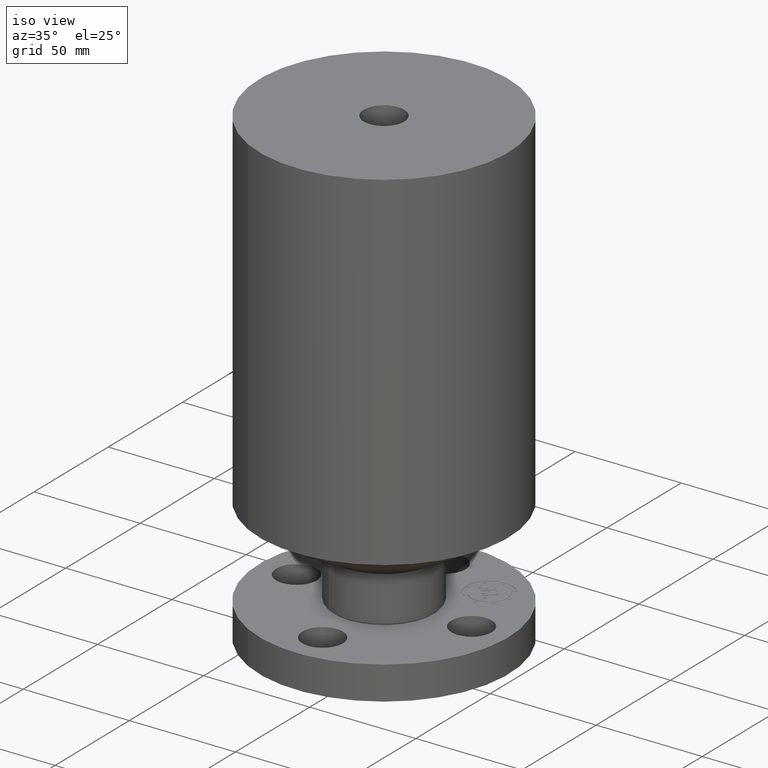
[diagram: clean part render]
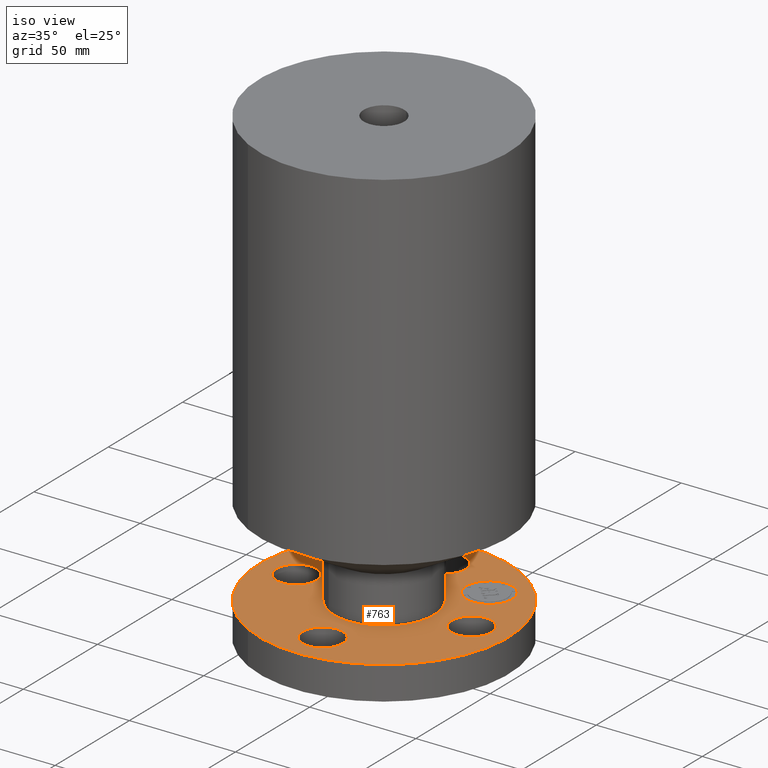
[diagram: same view with one face highlighted and labeled with its STEP entity id]
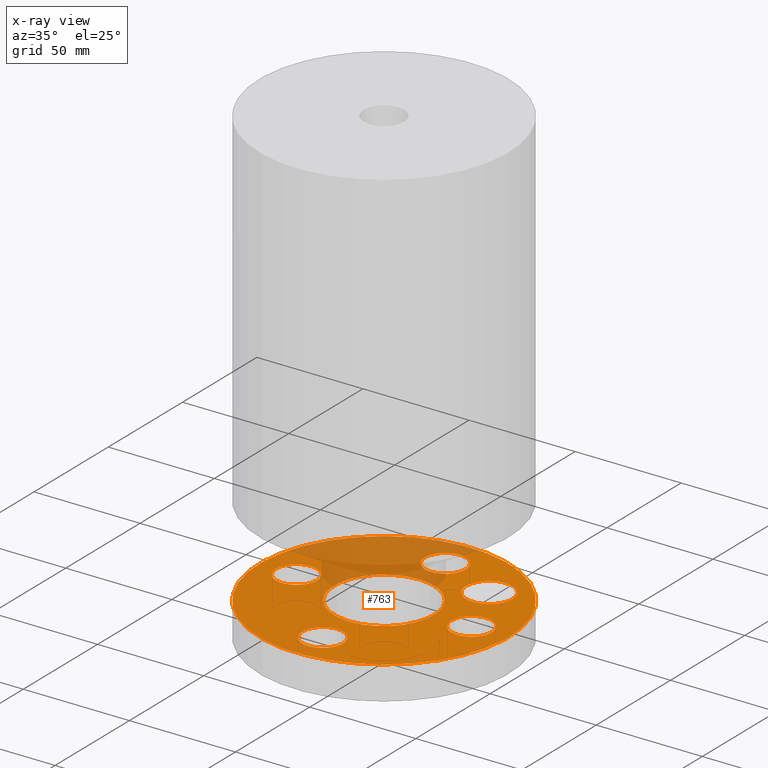
[diagram: x-ray of the same camera — body ghosted, the highlighted face saturated]
A machine part, iso view. The second image highlights one B-rep face of the part: STEP entity #763.
The next image is the same camera in x-ray: the body ghosted, the highlighted face saturated — about 24% of this face is hidden behind the body in this view.
In plain terms, the highlighted planar face has unit normal (0, 0, -1).
Its self-contained STEP definition (entity closure, byte-faithful):
#65=AXIS2_PLACEMENT_3D('Circle Axis2P3D',#63,#64,$) ;
#194=AXIS2_PLACEMENT_3D('Circle Axis2P3D',#192,#193,$) ;
#213=AXIS2_PLACEMENT_3D('Circle Axis2P3D',#211,#212,$) ;
#230=AXIS2_PLACEMENT_3D('Circle Axis2P3D',#228,#229,$) ;
#265=AXIS2_PLACEMENT_3D('Circle Axis2P3D',#263,#264,$) ;
#577=AXIS2_PLACEMENT_3D('Circle Axis2P3D',#575,#576,$) ;
#608=AXIS2_PLACEMENT_3D('Circle Axis2P3D',#606,#607,$) ;
#620=AXIS2_PLACEMENT_3D('Circle Axis2P3D',#618,#619,$) ;
#651=AXIS2_PLACEMENT_3D('Circle Axis2P3D',#649,#650,$) ;
#663=AXIS2_PLACEMENT_3D('Circle Axis2P3D',#661,#662,$) ;
#694=AXIS2_PLACEMENT_3D('Circle Axis2P3D',#692,#693,$) ;
#706=AXIS2_PLACEMENT_3D('Circle Axis2P3D',#704,#705,$) ;
#719=AXIS2_PLACEMENT_3D('Plane Axis2P3D',#716,#717,#718) ;
#747=AXIS2_PLACEMENT_3D('Circle Axis2P3D',#745,#746,$) ;
#756=AXIS2_PLACEMENT_3D('Circle Axis2P3D',#754,#755,$) ;
#44=CARTESIAN_POINT('Vertex',(1.95409346072,0.179784576977,0.620000000002)) ;
#60=CARTESIAN_POINT('Vertex',(1.2959065393,-0.179784576977,0.620000000002)) ;
#63=CARTESIAN_POINT('Axis2P3D Location',(1.62500000001,0.,0.620000000002)) ;
#189=CARTESIAN_POINT('Vertex',(-1.10747299418,-2.02721571797,0.620000000002)) ;
#192=CARTESIAN_POINT('Axis2P3D Location',(0.,0.,0.620000000002)) ;
#196=CARTESIAN_POINT('Vertex',(1.10747299418,2.02721571797,0.620000000002)) ;
#211=CARTESIAN_POINT('Axis2P3D Location',(0.,0.,0.620000000002)) ;
#228=CARTESIAN_POINT('Axis2P3D Location',(0.,0.,0.620000000002)) ;
#232=CARTESIAN_POINT('Vertex',(0.443468623211,0.811763869752,0.620000000002)) ;
#234=CARTESIAN_POINT('Vertex',(-0.443468623211,-0.811763869752,0.620000000002)) ;
#263=CARTESIAN_POINT('Axis2P3D Location',(0.,0.,0.620000000002)) ;
#575=CARTESIAN_POINT('Axis2P3D Location',(1.62500000001,0.,0.620000000002)) ;
#596=CARTESIAN_POINT('Vertex',(0.179784576977,-1.95409346072,0.620000000002)) ;
#603=CARTESIAN_POINT('Vertex',(-0.179784576977,-1.2959065393,0.620000000002)) ;
#606=CARTESIAN_POINT('Axis2P3D Location',(-1.8023868212E-016,-1.62500000001,0.620000000002)) ;
#618=CARTESIAN_POINT('Axis2P3D Location',(-1.8023868212E-016,-1.62500000001,0.620000000002)) ;
#639=CARTESIAN_POINT('Vertex',(-1.95409346072,-0.179784576977,0.620000000002)) ;
#646=CARTESIAN_POINT('Vertex',(-1.2959065393,0.179784576977,0.620000000002)) ;
#649=CARTESIAN_POINT('Axis2P3D Location',(-1.62500000001,-1.99005104862E-016,0.620000000002)) ;
#661=CARTESIAN_POINT('Axis2P3D Location',(-1.62500000001,-1.99005104862E-016,0.620000000002)) ;
#682=CARTESIAN_POINT('Vertex',(-0.179784576977,1.95409346072,0.620000000002)) ;
#689=CARTESIAN_POINT('Vertex',(0.179784576977,1.2959065393,0.620000000002)) ;
#692=CARTESIAN_POINT('Axis2P3D Location',(-2.98507657293E-016,1.62500000001,0.620000000002)) ;
#704=CARTESIAN_POINT('Axis2P3D Location',(-2.98507657293E-016,1.62500000001,0.620000000002)) ;
#716=CARTESIAN_POINT('Axis2P3D Location',(0.,2.31000000001,0.620000000002)) ;
#745=CARTESIAN_POINT('Axis2P3D Location',(1.14904851943,1.14904851943,0.620000000002)) ;
#749=CARTESIAN_POINT('Vertex',(1.44956889843,0.848528140432,0.620000000002)) ;
#751=CARTESIAN_POINT('Vertex',(0.848528140432,1.44956889843,0.620000000002)) ;
#754=CARTESIAN_POINT('Axis2P3D Location',(1.14904851943,1.14904851943,0.620000000002)) ;
#64=DIRECTION('Axis2P3D Direction',(0.,-0.,0.0393700787402)) ;
#193=DIRECTION('Axis2P3D Direction',(0.,0.,-0.0393700787402)) ;
#212=DIRECTION('Axis2P3D Direction',(0.,0.,-0.0393700787402)) ;
#229=DIRECTION('Axis2P3D Direction',(0.,0.,-0.0393700787402)) ;
#264=DIRECTION('Axis2P3D Direction',(0.,0.,-0.0393700787402)) ;
#576=DIRECTION('Axis2P3D Direction',(0.,-0.,0.0393700787402)) ;
#607=DIRECTION('Axis2P3D Direction',(-0.,0.,0.0393700787402)) ;
#619=DIRECTION('Axis2P3D Direction',(-0.,0.,0.0393700787402)) ;
#650=DIRECTION('Axis2P3D Direction',(0.,0.,0.0393700787402)) ;
#662=DIRECTION('Axis2P3D Direction',(0.,0.,0.0393700787402)) ;
#693=DIRECTION('Axis2P3D Direction',(0.,0.,0.0393700787402)) ;
#705=DIRECTION('Axis2P3D Direction',(0.,0.,0.0393700787402)) ;
#717=DIRECTION('Axis2P3D Direction',(0.,0.,-0.0393700787402)) ;
#718=DIRECTION('Axis2P3D XDirection',(0.0393700787402,0.,0.)) ;
#746=DIRECTION('Axis2P3D Direction',(0.,0.,-0.0393700787402)) ;
#755=DIRECTION('Axis2P3D Direction',(0.,0.,-0.0393700787402)) ;
#722=ORIENTED_EDGE('',*,*,#215,.F.) ;
#723=ORIENTED_EDGE('',*,*,#198,.F.) ;
#726=ORIENTED_EDGE('',*,*,#67,.T.) ;
#727=ORIENTED_EDGE('',*,*,#579,.T.) ;
#730=ORIENTED_EDGE('',*,*,#267,.T.) ;
#731=ORIENTED_EDGE('',*,*,#236,.T.) ;
#734=ORIENTED_EDGE('',*,*,#622,.T.) ;
#735=ORIENTED_EDGE('',*,*,#610,.T.) ;
#738=ORIENTED_EDGE('',*,*,#665,.T.) ;
#739=ORIENTED_EDGE('',*,*,#653,.T.) ;
#742=ORIENTED_EDGE('',*,*,#708,.T.) ;
#743=ORIENTED_EDGE('',*,*,#696,.T.) ;
#760=ORIENTED_EDGE('',*,*,#753,.F.) ;
#761=ORIENTED_EDGE('',*,*,#758,.F.) ;
#728=FACE_BOUND('',#725,.T.) ;
#732=FACE_BOUND('',#729,.T.) ;
#736=FACE_BOUND('',#733,.T.) ;
#740=FACE_BOUND('',#737,.T.) ;
#744=FACE_BOUND('',#741,.T.) ;
#762=FACE_BOUND('',#759,.T.) ;
#763=ADVANCED_FACE('PartBody',(#724,#728,#732,#736,#740,#744,#762),#720,.F.) ;
#66=CIRCLE('generated circle',#65,0.375000000001) ;
#195=CIRCLE('generated circle',#194,2.31000000001) ;
#214=CIRCLE('generated circle',#213,2.31000000001) ;
#231=CIRCLE('generated circle',#230,0.925000000004) ;
#266=CIRCLE('generated circle',#265,0.925000000004) ;
#578=CIRCLE('generated circle',#577,0.375000000001) ;
#609=CIRCLE('generated circle',#608,0.375000000001) ;
#621=CIRCLE('generated circle',#620,0.375000000001) ;
#652=CIRCLE('generated circle',#651,0.375000000002) ;
#664=CIRCLE('generated circle',#663,0.375000000002) ;
#695=CIRCLE('generated circle',#694,0.375000000001) ;
#707=CIRCLE('generated circle',#706,0.375000000001) ;
#748=CIRCLE('generated circle',#747,0.424999995752) ;
#757=CIRCLE('generated circle',#756,0.424999995752) ;
#67=EDGE_CURVE('',#45,#61,#66,.F.) ;
#198=EDGE_CURVE('',#190,#197,#195,.T.) ;
#215=EDGE_CURVE('',#197,#190,#214,.T.) ;
#236=EDGE_CURVE('',#233,#235,#231,.T.) ;
#267=EDGE_CURVE('',#235,#233,#266,.T.) ;
#579=EDGE_CURVE('',#61,#45,#578,.F.) ;
#610=EDGE_CURVE('',#597,#604,#609,.F.) ;
#622=EDGE_CURVE('',#604,#597,#621,.F.) ;
#653=EDGE_CURVE('',#640,#647,#652,.F.) ;
#665=EDGE_CURVE('',#647,#640,#664,.F.) ;
#696=EDGE_CURVE('',#683,#690,#695,.F.) ;
#708=EDGE_CURVE('',#690,#683,#707,.F.) ;
#753=EDGE_CURVE('',#750,#752,#748,.F.) ;
#758=EDGE_CURVE('',#752,#750,#757,.F.) ;
#721=EDGE_LOOP('',(#722,#723)) ;
#725=EDGE_LOOP('',(#726,#727)) ;
#729=EDGE_LOOP('',(#730,#731)) ;
#733=EDGE_LOOP('',(#734,#735)) ;
#737=EDGE_LOOP('',(#738,#739)) ;
#741=EDGE_LOOP('',(#742,#743)) ;
#759=EDGE_LOOP('',(#760,#761)) ;
#724=FACE_OUTER_BOUND('',#721,.T.) ;
#720=PLANE('',#719) ;
#45=VERTEX_POINT('',#44) ;
#61=VERTEX_POINT('',#60) ;
#190=VERTEX_POINT('',#189) ;
#197=VERTEX_POINT('',#196) ;
#233=VERTEX_POINT('',#232) ;
#235=VERTEX_POINT('',#234) ;
#597=VERTEX_POINT('',#596) ;
#604=VERTEX_POINT('',#603) ;
#640=VERTEX_POINT('',#639) ;
#647=VERTEX_POINT('',#646) ;
#683=VERTEX_POINT('',#682) ;
#690=VERTEX_POINT('',#689) ;
#750=VERTEX_POINT('',#749) ;
#752=VERTEX_POINT('',#751) ;